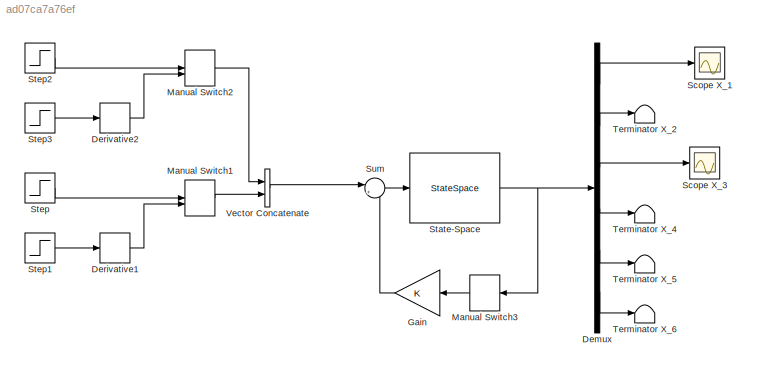
MODEL slx_ad07ca7a76ef
KIND model
CONFIG AbsTol = auto
CONFIG EnableMultiTasking = on
CONFIG FixedStep = auto
CONFIG MaxStep = auto
CONFIG MinStep = auto
CONFIG RelTol = 1e-3
CONFIG SampleTimeConstraint = Unconstrained
CONFIG Solver = VariableStepAuto
CONFIG SolverName = VariableStepAuto
CONFIG StartTime = 0.0
CONFIG StopTime = 10.0
BLOCK [Demux] Demux
  Outputs = 6
  Ports = [1, 6]
BLOCK [Derivative] Derivative1
BLOCK [Derivative] Derivative2
BLOCK [Gain] Gain
  Gain = K
  Multiplication = Matrix(K*u)
BLOCK [ManualSwitch] Manual Switch1
BLOCK [ManualSwitch] Manual Switch2
BLOCK [ManualSwitch] Manual Switch3
  NameLocation = top
BLOCK [Scope] Scope X_1 
  Floating = off
  NumInputPorts = 1
  Ports = [1]
  ScopeSpecificationString = Simulink.scopes.TimeScopeBlockCfg('CurrentConfiguration', extmgr.ConfigurationSet(extmgr.Configuration('Core','General UI',true),extmgr.Configuration('Core','Source UI',true),extmgr.Configuration('Sources','WiredSimulink',true,'DataLoggingVariableName','ScopeData3'),extmgr.Configuration('Visuals','Time Domain',true,'SerializedDisplays',{struct('MinYLimReal','-0.00243','MaxYLimReal','0.02186','YLab...<+1425ch>
BLOCK [Scope] Scope X_3
  Floating = off
  NumInputPorts = 1
  Ports = [1]
  ScopeSpecificationString = Simulink.scopes.TimeScopeBlockCfg('CurrentConfiguration', extmgr.ConfigurationSet(extmgr.Configuration('Core','General UI',true),extmgr.Configuration('Core','Source UI',true),extmgr.Configuration('Sources','WiredSimulink',true,'DataLoggingVariableName','ScopeData2'),extmgr.Configuration('Visuals','Time Domain',true,'SerializedDisplays',{struct('MinYLimReal','-0.12944','MaxYLimReal','1.16492','YLab...<+1421ch>
BLOCK [StateSpace] State-Space
  A = A
  B = B
  C = eye(6)
  D = zeros(6,2)
  InitialCondition = 0
  Ports = [1, 1]
BLOCK [Step] Step
  After = 100
  SampleTime = 0
BLOCK [Step] Step1
  SampleTime = 0
  Time = 4
BLOCK [Step] Step2
  After = 10
  SampleTime = 0
BLOCK [Step] Step3
  SampleTime = 0
  Time = 4
BLOCK [Sum] Sum
  Inputs = |+-
  Ports = [2, 1]
BLOCK [Terminator] Terminator X_2
BLOCK [Terminator] Terminator X_4
BLOCK [Terminator] Terminator X_5
BLOCK [Terminator] Terminator X_6
BLOCK [Concatenate] Vector Concatenate
  Mode = Multidimensional array
  Ports = [2, 1]
LINE Demux:1 -> Scope X_1 :1
LINE Demux:2 -> Terminator X_2:1
LINE Demux:3 -> Scope X_3:1
LINE Demux:4 -> Terminator X_4:1
LINE Demux:5 -> Terminator X_5:1
LINE Demux:6 -> Terminator X_6:1
LINE Derivative1:1 -> Manual Switch1:2
LINE Derivative2:1 -> Manual Switch2:2
LINE Gain:1 -> Sum:2
LINE Manual Switch1:1 -> Vector Concatenate:2
LINE Manual Switch2:1 -> Vector Concatenate:1
LINE Manual Switch3:1 -> Gain:1
NET State-Space:1 -> Demux:1, Manual Switch3:1
LINE Step1:1 -> Derivative1:1
LINE Step2:1 -> Manual Switch2:1
LINE Step3:1 -> Derivative2:1
LINE Step:1 -> Manual Switch1:1
LINE Sum:1 -> State-Space:1
LINE Vector Concatenate:1 -> Sum:1
note: NET lines group one-source signal fan-out (src -> all destinations, sorted); 1:1 wires keep LINE
